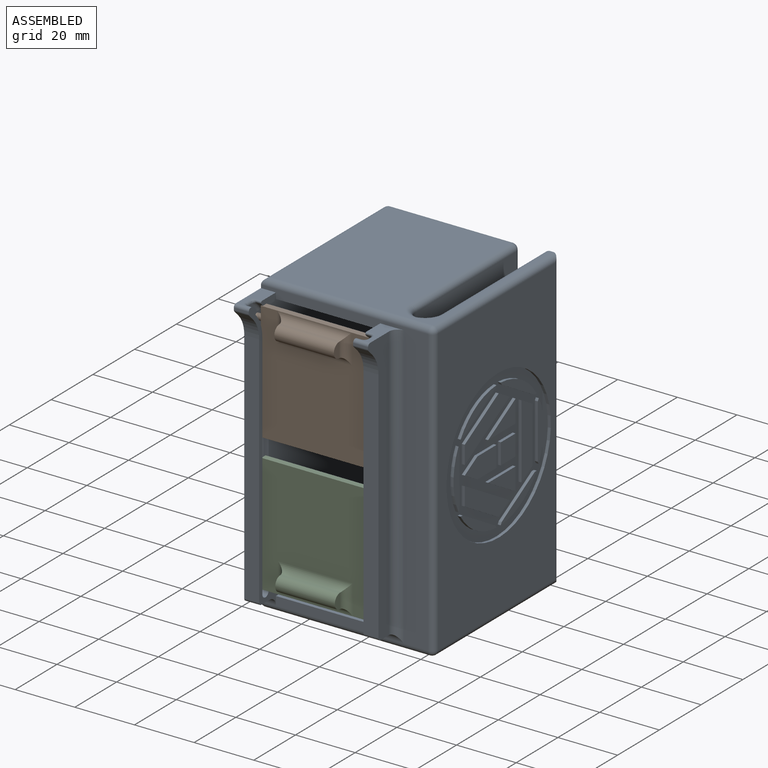
[diagram: assembled view]
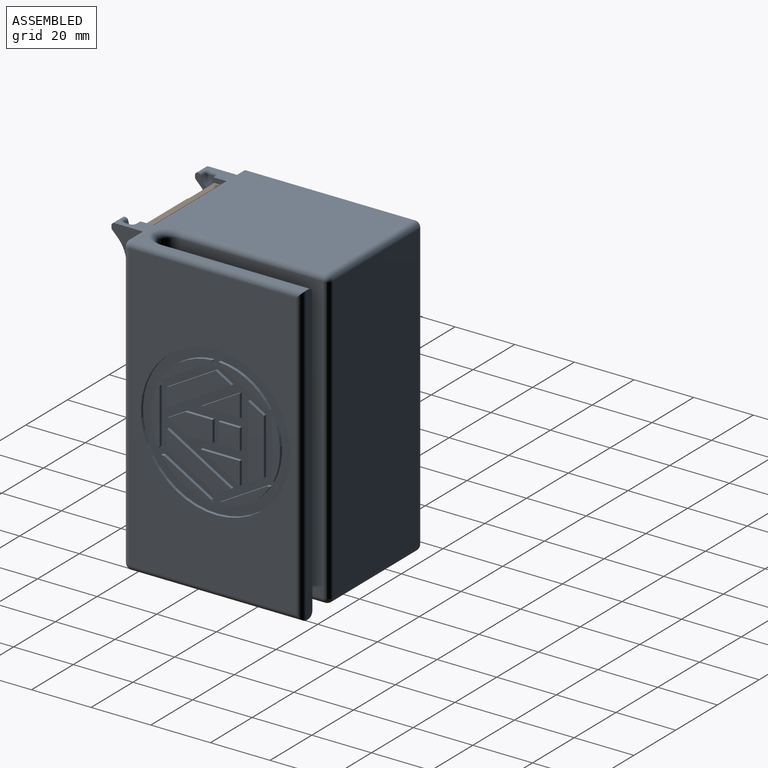
[diagram: assembled view, second angle]
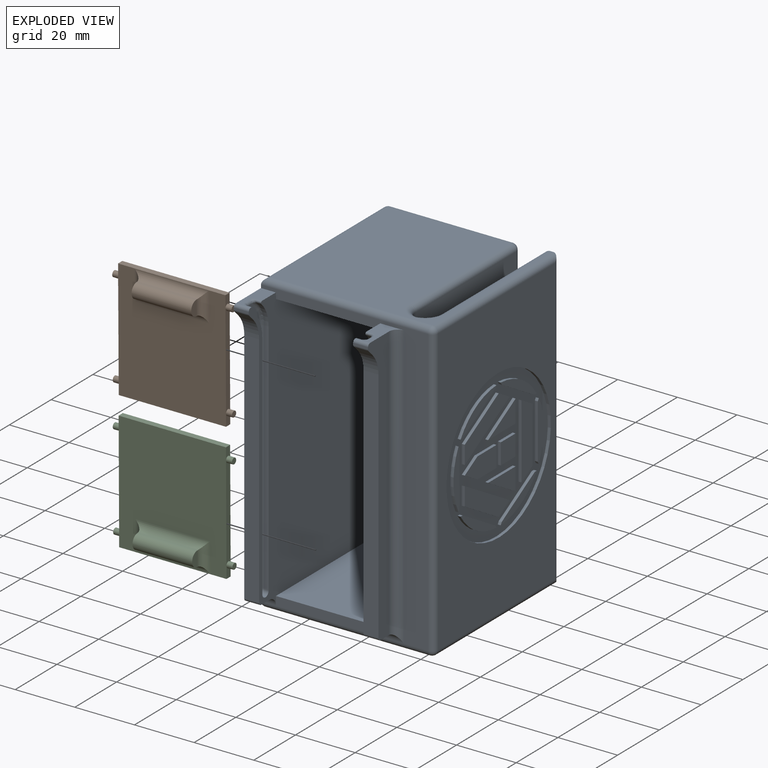
[diagram: exploded view]
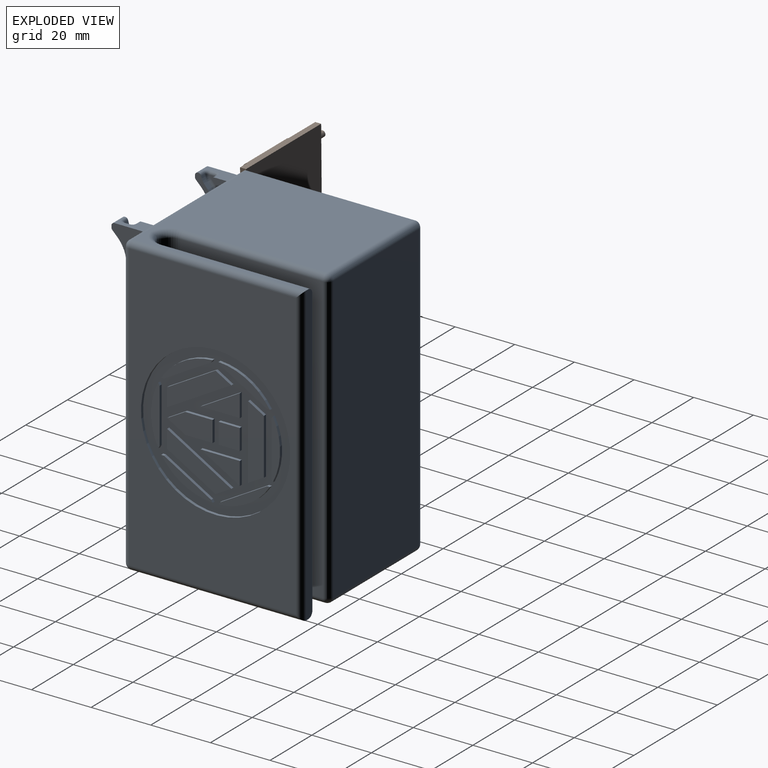
[diagram: exploded view, second angle]
ASSEMBLY  parts=3 mates=4
PART A: 167 faces, bbox 58x73x100 mm
  f0: plane 96x56mm, normal (0,-1,0), area 886mm2, adj f1,f2,f3,f4,f9,f12,f23,f24
  f1: plane 95x68mm, normal (-1,0,0), area 5432.7mm2, adj f0,f4,f5,f12,f13,f14,f111,f113
  f2: plane 95x68mm, normal (1,0,0), area 5432.7mm2, adj f0,f3,f5,f12,f13,f14,f114,f115
  f3: plane 12.04x5.04mm, normal (0,0,1), area 43.2mm2, adj f0,f2,f9,f122,f143,f148,f150,f152
  f4: plane 12.04x8.04mm, normal (0,0,1), area 45.1mm2, adj f0,f1,f112,f125,f142,f159,f161,f162
  f5: plane 35x3mm, normal (0,-1,0), area 105mm2, adj f1,f2,f13,f24
  f6: plane 96x56mm, normal (1,0,0), area 3412.5mm2, adj f19,f20,f22,f23,f94
  f7: plane 96x48mm, normal (1,0,0), area 4608mm2, adj f18,f35,f39,f41
  f8: plane 58x54mm, normal (0,0,1), area 2387mm2, adj f16,f22,f29,f32,f38,f41,f42,f43
  f9: plane 96x71mm, normal (-1,0,0), area 6330.1mm2, adj f0,f3,f27,f32,f33,f114,f115,f116
  f10: plane 58x54mm, normal (0,0,-1), area 2387mm2, adj f16,f19,f24,f25,f27,f28,f31,f34
  f11: plane 96x41mm, normal (0,1,0), area 3936mm2, adj f33,f34,f38,f39
  f12: plane 55x35mm, normal (0,0,-1), area 1925mm2, adj f0,f1,f2,f14
  f13: plane 55x35mm, normal (0,0,1), area 1925mm2, adj f1,f2,f5,f14
  f14: plane 90x35mm, normal (0,-1,0), area 3150mm2, adj f1,f2,f12,f13
  f15: plane 96x50mm, normal (-1,0,0), area 4800mm2, adj f16,f17,f25,f42
  f16: plane 100x3mm, normal (0,1,0), area 298.3mm2, adj f8,f10,f15,f20,f25,f42
  f17: cylinder r=5mm len=96mm, axis (0,0,-1), area 657.3mm2, adj f15,f18,f28,f44
  f18: cylinder r=5mm len=96mm, axis (0,0,1), area 657.3mm2, adj f7,f17,f31,f43
  f19: cylinder r=2mm len=58mm, axis (0,-1,0), area 179.1mm2, adj f6,f10,f20,f21
  f20: cylinder r=2mm len=100mm, axis (0,0,-1), area 307.9mm2, adj f6,f16,f19,f22
  f21: sphere r=2mm, area 6.3mm2, adj f19,f23,f24
  f22: cylinder r=2mm len=58mm, axis (0,1,0), area 179.1mm2, adj f6,f8,f20,f26
  f23: cylinder r=2mm len=96mm, axis (0,0,1), area 301.6mm2, adj f0,f6,f21,f26
  f24: cylinder r=2mm len=56mm, axis (1,0,0), area 172.8mm2, adj f0,f5,f10,f21,f27,f164,f166
  f25: cylinder r=2mm len=50mm, axis (0,1,0), area 157.1mm2, adj f10,f15,f16,f28
  f26: sphere r=2mm, area 6.3mm2, adj f22,f23,f29
  f27: cylinder r=2mm len=58mm, axis (0,-1,0), area 179.1mm2, adj f9,f10,f24,f30
  f28: torus R=7mm, axis (0,0,1), area 25.2mm2, adj f10,f17,f25,f31
  f29: cylinder r=2mm len=56mm, axis (-1,0,0), area 172.8mm2, adj f0,f8,f26,f32
  f30: sphere r=2mm, area 8.6mm2, adj f27,f33,f34
  f31: torus R=7mm, axis (0,0,1), area 25.2mm2, adj f10,f18,f28,f35
  f32: cylinder r=2mm len=58mm, axis (0,1,0), area 179.1mm2, adj f8,f9,f29,f36
  f33: cylinder r=2mm len=96mm, axis (0,0,1), area 301.6mm2, adj f9,f11,f30,f36
  f34: cylinder r=2mm len=41mm, axis (-1,0,0), area 128.8mm2, adj f10,f11,f30,f37
  f35: cylinder r=2mm len=48mm, axis (0,1,0), area 150.8mm2, adj f7,f10,f31,f37
  f36: sphere r=2mm, area 8.6mm2, adj f32,f33,f38
  f37: sphere r=2mm, area 4mm2, adj f34,f35,f39
  f38: cylinder r=2mm len=41mm, axis (1,0,0), area 128.8mm2, adj f8,f11,f36,f40
  f39: cylinder r=2mm len=96mm, axis (0,0,-1), area 301.6mm2, adj f7,f11,f37,f40
  f40: sphere r=2mm, area 4mm2, adj f38,f39,f41
  f41: cylinder r=2mm len=48mm, axis (0,-1,0), area 150.8mm2, adj f7,f8,f40,f43
  f42: cylinder r=2mm len=50mm, axis (0,-1,0), area 157.1mm2, adj f8,f15,f16,f44
  f43: torus R=7mm, axis (0,0,1), area 25.2mm2, adj f8,f18,f41,f44
  f44: torus R=7mm, axis (0,0,1), area 25.2mm2, adj f8,f17,f42,f43
  f45: plane 7.1x1mm, normal (0,0,1), area 7.1mm2, adj f46,f96,f97,f110
  f46: plane 7.03x1mm, normal (0,1,0), area 7mm2, adj f45,f47,f97,f110
  f47: plane 7.1x1mm, normal (0,0,-1), area 7.1mm2, adj f46,f96,f97,f110
  f48: plane 6.09x3.52mm, normal (0,-0.5,-0.87), area 7mm2, adj f49,f83,f97,f109
  f49: plane 6.09x3.52mm, normal (0,-0.5,0.87), area 7mm2, adj f48,f50,f97,f109
  f50: plane 9.13x1mm, normal (0,0,1), area 9.1mm2, adj f49,f51,f97,f109
  f51: plane 7.03x1mm, normal (0,1,0), area 7mm2, adj f50,f83,f97,f109
  f52: plane 13.14x7.59mm, normal (0,-0.5,0.87), area 15.2mm2, adj f53,f84,f97,f108
  f53: plane 7.59x1mm, normal (0,1,0), area 7.6mm2, adj f52,f84,f97,f108
  f54: plane 16.24x9.38mm, normal (0,-0.5,0.87), area 18.7mm2, adj f55,f85,f97,f107
  f55: plane 5.32x3.07mm, normal (0,0.5,0.87), area 6.1mm2, adj f54,f56,f97,f107
  f56: plane 21.55x12.44mm, normal (0,0.5,-0.87), area 24.9mm2, adj f55,f85,f97,f107
  f57: plane 5.32x3.07mm, normal (0,0.5,-0.87), area 6.1mm2, adj f58,f86,f97,f106
  f58: plane 24.89x1mm, normal (0,-1,0), area 24.9mm2, adj f57,f59,f97,f106
  f59: plane 5.32x3.07mm, normal (0,0.5,0.87), area 6.1mm2, adj f58,f86,f97,f106
  f60: plane 7.59x1mm, normal (0,1,0), area 7.6mm2, adj f61,f87,f97,f105
  f61: plane 13.14x7.59mm, normal (0,-0.5,-0.87), area 15.2mm2, adj f60,f87,f97,f105
  f62: plane 16.24x9.38mm, normal (0,-0.5,-0.87), area 18.7mm2, adj f63,f88,f97,f104
  f63: plane 6.14x1mm, normal (0,-1,0), area 6.1mm2, adj f62,f64,f97,f104
  f64: plane 21.55x12.44mm, normal (0,0.5,0.87), area 24.9mm2, adj f63,f88,f97,f104
  f65: cylinder r=21.65mm len=17.26mm, axis (1,0,0), area 20.7mm2, adj f66,f89,f97,f103
  f66: plane 1x0.82mm, normal (0,0.87,-0.5), area 0.9mm2, adj f65,f67,f97,f103
  f67: plane 15.85x9.15mm, normal (0,0.5,-0.87), area 18.3mm2, adj f66,f89,f97,f103
  f68: cylinder r=21.65mm len=17.26mm, axis (1,0,0), area 20.7mm2, adj f69,f90,f97,f102
  f69: plane 1x0.94mm, normal (0,0,-1), area 0.9mm2, adj f68,f70,f97,f102
  f70: plane 15.85x9.15mm, normal (0,-0.5,-0.87), area 18.3mm2, adj f69,f90,f97,f102
  f71: cylinder r=21.65mm len=19.93mm, axis (1,0,0), area 20.7mm2, adj f72,f91,f97,f101
  f72: plane 1x0.82mm, normal (0,-0.87,-0.5), area 0.9mm2, adj f71,f73,f97,f101
  f73: plane 18.3x1mm, normal (0,-1,0), area 18.3mm2, adj f72,f91,f97,f101
  f74: plane 1x0.94mm, normal (0,0,1), area 0.9mm2, adj f75,f92,f97,f100
  f75: cylinder r=21.65mm len=17.26mm, axis (1,0,0), area 20.7mm2, adj f74,f76,f97,f100
  f76: plane 1x0.82mm, normal (0,-0.87,0.5), area 0.9mm2, adj f75,f92,f97,f100
  f77: plane 1x0.82mm, normal (0,0.87,0.5), area 0.9mm2, adj f78,f93,f97,f99
  f78: cylinder r=21.65mm len=17.26mm, axis (1,0,0), area 20.7mm2, adj f77,f79,f97,f99
  f79: plane 1x0.94mm, normal (0,0,1), area 0.9mm2, adj f78,f93,f97,f99
  f80: cylinder r=21.65mm len=19.93mm, axis (1,0,0), area 20.7mm2, adj f81,f95,f97,f98
  f81: plane 1x0.82mm, normal (0,0.87,0.5), area 0.9mm2, adj f80,f82,f97,f98
  f82: plane 18.3x1mm, normal (0,1,0), area 18.3mm2, adj f81,f95,f97,f98
  f83: plane 9.13x1mm, normal (0,0,-1), area 9.1mm2, adj f48,f51,f97,f109
  f84: plane 13.14x1mm, normal (0,0,-1), area 13.1mm2, adj f52,f53,f97,f108
  f85: plane 6.14x1mm, normal (0,-1,0), area 6.1mm2, adj f54,f56,f97,f107
  f86: plane 18.75x1mm, normal (0,1,0), area 18.7mm2, adj f57,f59,f97,f106
  f87: plane 13.14x1mm, normal (0,0,1), area 13.1mm2, adj f60,f61,f97,f105
  f88: plane 5.32x3.07mm, normal (0,0.5,-0.87), area 6.1mm2, adj f62,f64,f97,f104
  f89: plane 1x0.94mm, normal (0,0,-1), area 0.9mm2, adj f65,f67,f97,f103
  f90: plane 1x0.82mm, normal (0,-0.87,-0.5), area 0.9mm2, adj f68,f70,f97,f102
  f91: plane 1x0.82mm, normal (0,-0.87,0.5), area 0.9mm2, adj f71,f73,f97,f101
  f92: plane 15.85x9.15mm, normal (0,-0.5,0.87), area 18.3mm2, adj f74,f76,f97,f100
  f93: plane 15.85x9.15mm, normal (0,0.5,0.87), area 18.3mm2, adj f77,f79,f97,f99
  f94: cylinder r=25mm len=50mm, axis (1,0,0), area 157.1mm2, adj f6,f97
  f95: plane 1x0.82mm, normal (0,0.87,-0.5), area 0.9mm2, adj f80,f82,f97,f98
  f96: plane 7.03x1mm, normal (0,-1,0), area 7mm2, adj f45,f47,f97,f110
  f97: plane 50x50mm, normal (1,0,0), area 1130.2mm2, adj f45,f46,f47,f48,f49,f50,f51,f52
  f98: plane 19.93x2.9mm, normal (1,0,0), area 41.7mm2, adj f80,f81,f82,f95
  f99: plane 17.26x9.97mm, normal (1,0,0), area 41.7mm2, adj f77,f78,f79,f93
  f100: plane 17.26x9.97mm, normal (1,0,0), area 41.7mm2, adj f74,f75,f76,f92
  f101: plane 19.93x2.9mm, normal (1,0,0), area 41.7mm2, adj f71,f72,f73,f91
  f102: plane 17.26x9.97mm, normal (1,0,0), area 41.7mm2, adj f68,f69,f70,f90
  f103: plane 17.26x9.97mm, normal (1,0,0), area 41.7mm2, adj f65,f66,f67,f89
  f104: plane 21.55x15.51mm, normal (1,0,0), area 116mm2, adj f62,f63,f64,f88
  f105: plane 13.14x7.59mm, normal (1,0,0), area 49.9mm2, adj f60,f61,f87
  f106: plane 24.89x5.32mm, normal (1,0,0), area 116mm2, adj f57,f58,f59,f86
  f107: plane 21.55x15.51mm, normal (1,0,0), area 116mm2, adj f54,f55,f56,f85
  f108: plane 13.14x7.59mm, normal (1,0,0), area 49.9mm2, adj f52,f53,f84
  f109: plane 15.22x7.03mm, normal (1,0,0), area 85.6mm2, adj f48,f49,f50,f51,f83
  f110: plane 7.1x7.03mm, normal (1,0,0), area 50mm2, adj f45,f46,f47,f96
  f111: plane 5x4mm, normal (0,0,-1), area 20mm2, adj f1,f112,f126,f164
  f112: plane 92x10mm, normal (1,0,0), area 484.2mm2, adj f4,f111,f113,f117,f119,f120,f124,f125
  f113: plane 79.86x5mm, normal (0,-1,0), area 399.3mm2, adj f1,f112,f120,f126
  f114: plane 5x4mm, normal (0,0,-1), area 20mm2, adj f2,f9,f127,f166
  f115: plane 79.86x5mm, normal (0,-1,0), area 399.3mm2, adj f2,f9,f121,f127
  f116: plane 5x0.59mm, normal (0,-1,0), area 2.9mm2, adj f2,f9,f122,f123
  f117: plane 5x0.59mm, normal (0,-1,0), area 2.9mm2, adj f1,f112,f124,f125
  f118: plane 5x1.78mm, normal (0,-0.71,-0.71), area 12.6mm2, adj f2,f9,f121,f123
  f119: plane 5x1.78mm, normal (0,-0.71,-0.71), area 12.6mm2, adj f1,f112,f120,f124
  f120: cylinder r=10mm len=7.07mm, axis (-1,0,0), area 39.3mm2, adj f1,f112,f113,f119
  f121: cylinder r=10mm len=7.07mm, axis (1,0,0), area 39.3mm2, adj f2,f9,f115,f118
  f122: cylinder r=1mm len=5mm, axis (1,0,0), area 7.9mm2, adj f2,f3,f9,f116
  f123: cylinder r=1mm len=5mm, axis (-1,0,0), area 3.9mm2, adj f2,f9,f116,f118
  f124: cylinder r=1mm len=5mm, axis (-1,0,0), area 3.9mm2, adj f1,f112,f117,f119
  f125: cylinder r=1mm len=5mm, axis (1,0,0), area 7.9mm2, adj f1,f4,f112,f117
  f126: cylinder r=1mm len=5mm, axis (-1,0,0), area 7.9mm2, adj f1,f111,f112,f113
  f127: cylinder r=1mm len=5mm, axis (-1,0,0), area 7.9mm2, adj f2,f9,f114,f115
  f128: plane 88.5x5.31mm, normal (-1,0,0), area 94.1mm2, adj f154,f155,f156,f157,f158,f160,f161
  f129: cylinder r=11.25mm len=8.14mm, axis (1,0,0), area 13.6mm2, adj f1,f133,f142,f157
  f130: cylinder r=11.25mm len=7.78mm, axis (1,0,0), area 12.9mm2, adj f1,f131,f140,f158
  f131: plane 78x1.5mm, normal (0,1,0), area 117mm2, adj f1,f130,f132,f156
  f132: cylinder r=1.5mm len=3mm, axis (1,0,0), area 7.1mm2, adj f1,f131,f133,f154
  f133: plane 80x1.5mm, normal (0,-1,0), area 120mm2, adj f1,f129,f132,f155
  f134: plane 80x1.5mm, normal (0,-1,0), area 120mm2, adj f2,f135,f138,f144
  f135: cylinder r=1.5mm len=3mm, axis (1,0,0), area 7.1mm2, adj f2,f134,f136,f145
  f136: plane 78x1.5mm, normal (0,1,0), area 117mm2, adj f2,f135,f137,f147
  f137: cylinder r=11.25mm len=7.78mm, axis (1,0,0), area 12.9mm2, adj f2,f136,f141,f149
  f138: cylinder r=11.25mm len=8.14mm, axis (1,0,0), area 13.6mm2, adj f2,f134,f143,f146
  f139: plane 88.5x5.31mm, normal (1,0,0), area 94.1mm2, adj f144,f145,f146,f147,f149,f150,f151
  f140: cylinder r=5mm len=2.43mm, axis (-1,0,0), area 4.2mm2, adj f1,f130,f160,f163
  f141: cylinder r=5mm len=2.43mm, axis (-1,0,0), area 4.2mm2, adj f2,f137,f151,f153
  f142: cylinder r=0.5mm len=1.5mm, axis (1,0,0), area 1.8mm2, adj f1,f4,f129,f159
  f143: cylinder r=0.5mm len=1.5mm, axis (1,0,0), area 1.8mm2, adj f2,f3,f138,f148
  f144: cylinder r=1mm len=80mm, axis (0,0,-1), area 125.7mm2, adj f134,f139,f145,f146
  f145: torus R=0.5mm, axis (-1,0,0), area 5.6mm2, adj f135,f139,f144,f147
  f146: torus R=10.25mm, axis (-1,0,0), area 14.6mm2, adj f138,f139,f144,f148
  f147: cylinder r=1mm len=78mm, axis (0,0,1), area 122.5mm2, adj f136,f139,f145,f149
  f148: bspline ~2.08x1.7mm, area 3.2mm2, adj f3,f143,f146,f150
  f149: torus R=12.25mm, axis (-1,0,0), area 13.9mm2, adj f137,f139,f147,f151
  f150: cylinder r=1mm len=1.47mm, axis (0,-1,0), area 2.3mm2, adj f3,f139,f148,f152
  f151: torus R=4mm, axis (-1,0,0), area 3.7mm2, adj f139,f141,f149,f152
  f152: bspline ~2.44x2.37mm, area 3.2mm2, adj f3,f150,f151,f153
  f153: cylinder r=1mm len=1.5mm, axis (-1,0,0), area 2mm2, adj f2,f3,f141,f152
  f154: torus R=0.5mm, axis (-1,0,0), area 5.6mm2, adj f128,f132,f155,f156
  f155: cylinder r=1mm len=80mm, axis (0,0,1), area 125.7mm2, adj f128,f133,f154,f157
  f156: cylinder r=1mm len=78mm, axis (0,0,-1), area 122.5mm2, adj f128,f131,f154,f158
  f157: torus R=10.25mm, axis (-1,0,0), area 14.6mm2, adj f128,f129,f155,f159
  f158: torus R=12.25mm, axis (-1,0,0), area 13.9mm2, adj f128,f130,f156,f160
  f159: bspline ~2.08x1.7mm, area 3.2mm2, adj f4,f142,f157,f161
  f160: torus R=4mm, axis (-1,0,0), area 3.7mm2, adj f128,f140,f158,f162
  f161: cylinder r=1mm len=1.47mm, axis (0,1,0), area 2.3mm2, adj f4,f128,f159,f162
  f162: bspline ~2.57x2.39mm, area 3.2mm2, adj f4,f160,f161,f163
  f163: cylinder r=1mm len=1.5mm, axis (-1,0,0), area 2mm2, adj f1,f4,f140,f162
  f164: cylinder r=3mm len=8mm, axis (1,0,0), area 30.6mm2, adj f1,f24,f111,f165
  f165: cylinder r=3mm len=95mm, axis (0,0,1), area 440.6mm2, adj f0,f4,f112,f164
  f166: cylinder r=3mm len=5mm, axis (1,0,0), area 23.6mm2, adj f2,f9,f24,f114
PART B: 25 faces, bbox 40x40x7 mm
  f0: plane 40x36mm, normal (0,0,1), area 1190mm2, adj f1,f2,f3,f4,f5,f6,f7,f8
  f1: plane 32x2mm, normal (1,0,0), area 60.9mm2, adj f0,f9,f12,f16
  f2: plane 32x2mm, normal (-1,0,0), area 60.9mm2, adj f0,f9,f11,f15
  f3: plane 4x2mm, normal (1,0,0), area 6.4mm2, adj f0,f8,f9,f12
  f4: plane 4x2mm, normal (-1,0,0), area 6.4mm2, adj f0,f8,f9,f11
  f5: plane 4x2mm, normal (1,0,0), area 6.4mm2, adj f0,f6,f9,f16
  f6: plane 36x2mm, normal (0,1,0), area 72mm2, adj f0,f5,f7,f9
  f7: plane 4x2mm, normal (-1,0,0), area 6.4mm2, adj f0,f6,f9,f15
  f8: plane 36x2mm, normal (0,-1,0), area 72mm2, adj f0,f3,f4,f9,f22
  f9: plane 40x36mm, normal (0,0,-1), area 1440mm2, adj f1,f2,f3,f4,f5,f6,f7,f8
  f10: plane 2x2mm, normal (-1,0,0), area 3.1mm2, adj f11
  f11: cylinder r=1mm len=2mm, axis (1,0,0), area 12.6mm2, adj f2,f4,f10
  f12: cylinder r=1mm len=2mm, axis (1,0,0), area 12.6mm2, adj f1,f3,f13
  f13: plane 2x2mm, normal (1,0,0), area 3.1mm2, adj f12
  f14: plane 2x2mm, normal (-1,0,0), area 3.1mm2, adj f15
  f15: cylinder r=1mm len=2mm, axis (1,0,0), area 12.6mm2, adj f2,f7,f14
  f16: cylinder r=1mm len=2mm, axis (1,0,0), area 12.6mm2, adj f1,f5,f17
  f17: plane 2x2mm, normal (1,0,0), area 3.1mm2, adj f16
  f18: plane 5x2.5mm, normal (1,0,0), area 9.8mm2, adj f21,f24
  f19: plane 5x2.5mm, normal (-1,0,0), area 9.8mm2, adj f20,f24
  f20: cylinder r=2.5mm len=10mm, axis (0,-1,0), area 26.8mm2, adj f0,f19,f22,f23
  f21: cylinder r=2.5mm len=10mm, axis (0,1,0), area 26.8mm2, adj f0,f18,f22,f23
  f22: cylinder r=2.5mm len=25mm, axis (1,0,0), area 85.7mm2, adj f8,f20,f21,f24
  f23: cylinder r=2.5mm len=25mm, axis (1,0,0), area 85.7mm2, adj f0,f20,f21,f24
  f24: cylinder r=2.5mm len=20mm, axis (-1,0,0), area 157.1mm2, adj f18,f19,f22,f23
PART C: same geometry as B
PLACE A t=(-30.05,-21.48,23.42)mm fixed
PLACE B rot(axis=(0,-0.71,0.7),180deg) t=(-30.05,-27.85,48.77)mm
PLACE C rot(axis=(1,0,0),90.4deg) t=(-30.05,-27.62,2.56)mm
MATE planar C.f15 <-> A.f139  axis (-1,0,0) through (-50.05,-26.72,18.57)mm
MATE planar A.f132 <-> C.f11  axis (1,0,0) through (-50.05,-26.48,-18.58)mm
MATE planar B.f11 <-> A.f139  axis (-1,0,0) through (-50.05,-26.98,64.78)mm
MATE planar B.f15 <-> A.f139  axis (-1,0,0) through (-50.05,-26.72,32.78)mm
